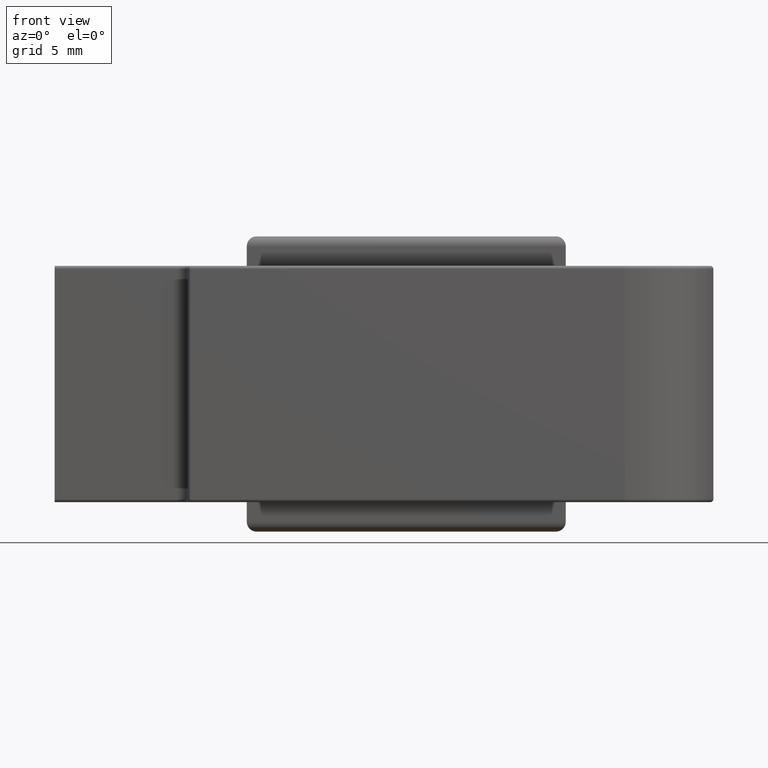
[diagram: clean part render]
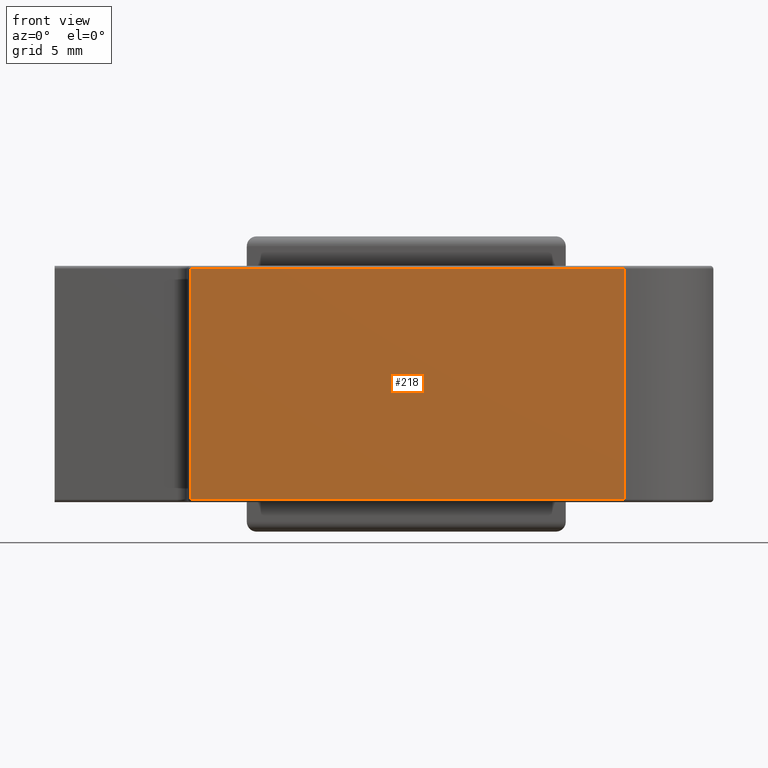
[diagram: same view with one face highlighted and labeled with its STEP entity id]
A machine part, front view. The second image highlights one B-rep face of the part: STEP entity #218.
In plain terms, the highlighted planar face has unit normal (-0, 1, 0).
Its self-contained STEP definition (entity closure, byte-faithful):
#27 = ORIENTED_EDGE ( 'NONE', *, *, #340, .T. ) ;
#30 = CARTESIAN_POINT ( 'NONE',  ( 0.1500000000000008271, -5.100000000000003197, 0.1500000000000008271 ) ) ;
#34 = DIRECTION ( 'NONE',  ( -1.000000000000000000, -9.745637505487680998E-17, -0.000000000000000000 ) ) ;
#61 = VECTOR ( 'NONE', #616, 1000.000000000000000 ) ;
#82 = CARTESIAN_POINT ( 'NONE',  ( 22.19999999999999574, -5.100000000000001421, 0.1500000000000008271 ) ) ;
#96 = EDGE_LOOP ( 'NONE', ( #584, #1769, #27, #1459 ) ) ;
#218 = ADVANCED_FACE ( 'NONE', ( #729 ), #1303, .F. ) ;
#290 = DIRECTION ( 'NONE',  ( -9.745637505487680998E-17, 1.000000000000000000, 0.000000000000000000 ) ) ;
#340 = EDGE_CURVE ( 'NONE', #455, #2072, #928, .T. ) ;
#360 = DIRECTION ( 'NONE',  ( -0.000000000000000000, -0.000000000000000000, 1.000000000000000000 ) ) ;
#378 = CARTESIAN_POINT ( 'NONE',  ( 0.1500000000000008271, -5.100000000000003197, 11.84999999999999964 ) ) ;
#455 = VERTEX_POINT ( 'NONE', #378 ) ;
#584 = ORIENTED_EDGE ( 'NONE', *, *, #913, .T. ) ;
#596 = LINE ( 'NONE', #2070, #1163 ) ;
#616 = DIRECTION ( 'NONE',  ( 1.000000000000000000, 9.745637505487680998E-17, 0.000000000000000000 ) ) ;
#646 = DIRECTION ( 'NONE',  ( -1.000000000000000000, -9.745637505487680998E-17, 0.000000000000000000 ) ) ;
#729 = FACE_OUTER_BOUND ( 'NONE', #96, .T. ) ;
#828 = CARTESIAN_POINT ( 'NONE',  ( 26.69999999999999929, -5.100000000000000533, 12.00000000000000000 ) ) ;
#913 = EDGE_CURVE ( 'NONE', #1001, #1098, #1588, .T. ) ;
#928 = LINE ( 'NONE', #2092, #1239 ) ;
#1001 = VERTEX_POINT ( 'NONE', #1221 ) ;
#1098 = VERTEX_POINT ( 'NONE', #1907 ) ;
#1163 = VECTOR ( 'NONE', #34, 1000.000000000000000 ) ;
#1198 = EDGE_CURVE ( 'NONE', #2072, #1001, #1481, .T. ) ;
#1221 = CARTESIAN_POINT ( 'NONE',  ( 22.19999999999999574, -5.100000000000001421, 0.1500000000000008271 ) ) ;
#1239 = VECTOR ( 'NONE', #1731, 1000.000000000000000 ) ;
#1303 = PLANE ( 'NONE',  #2142 ) ;
#1349 = VECTOR ( 'NONE', #360, 1000.000000000000000 ) ;
#1459 = ORIENTED_EDGE ( 'NONE', *, *, #1198, .T. ) ;
#1481 = LINE ( 'NONE', #82, #61 ) ;
#1521 = EDGE_CURVE ( 'NONE', #1098, #455, #596, .T. ) ;
#1588 = LINE ( 'NONE', #2046, #1349 ) ;
#1731 = DIRECTION ( 'NONE',  ( 0.000000000000000000, 0.000000000000000000, -1.000000000000000000 ) ) ;
#1769 = ORIENTED_EDGE ( 'NONE', *, *, #1521, .T. ) ;
#1907 = CARTESIAN_POINT ( 'NONE',  ( 22.19999999999999574, -5.100000000000001421, 11.84999999999999964 ) ) ;
#2046 = CARTESIAN_POINT ( 'NONE',  ( 22.19999999999999574, -5.100000000000001421, 12.00000000000000000 ) ) ;
#2070 = CARTESIAN_POINT ( 'NONE',  ( 26.69999999999999929, -5.100000000000000533, 11.84999999999999964 ) ) ;
#2072 = VERTEX_POINT ( 'NONE', #30 ) ;
#2092 = CARTESIAN_POINT ( 'NONE',  ( 0.1500000000000008271, -5.100000000000003197, 12.00000000000000000 ) ) ;
#2142 = AXIS2_PLACEMENT_3D ( 'NONE', #828, #290, #646 ) ;